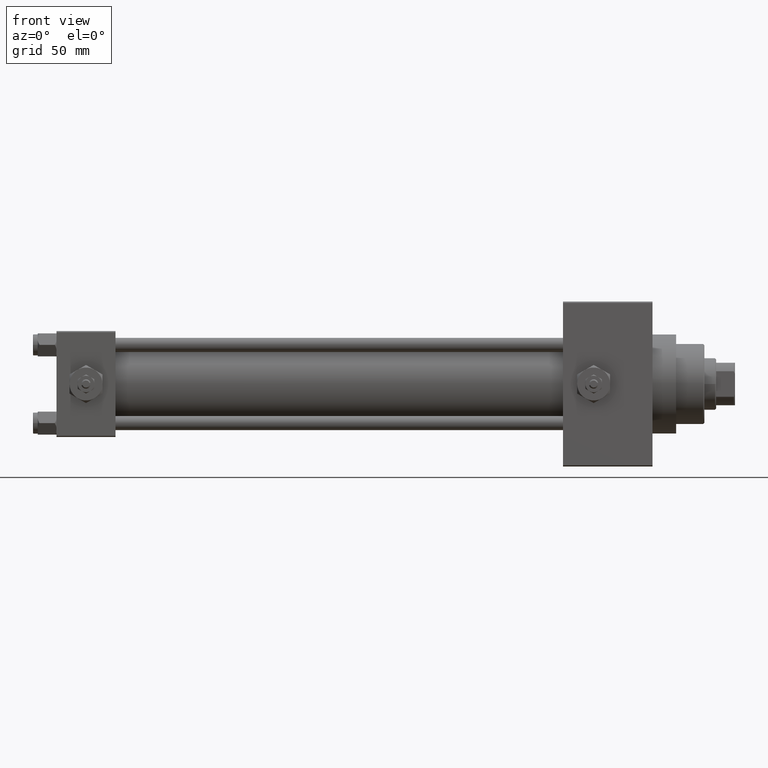
[diagram: clean part render]
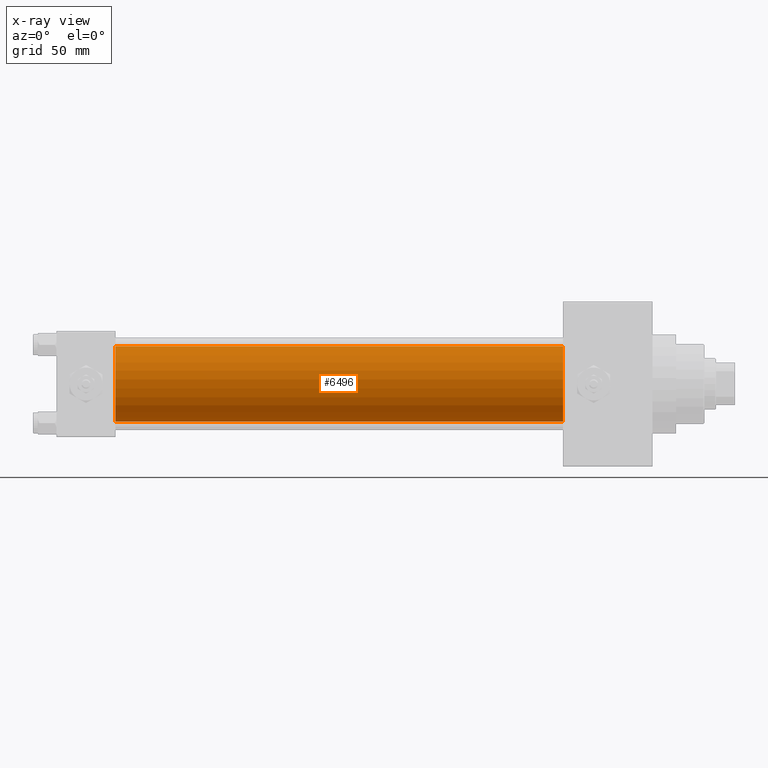
[diagram: x-ray — body ghosted, one internal face saturated and labeled with its STEP entity id]
A machine part, front view, then the same camera in x-ray: the body is ghosted and one INTERNAL B-rep face — a face not visible from any outside direction — is saturated and labeled: STEP entity #6496.
In plain terms, the highlighted cylindrical surface (partial cylindrical patch) has radius 16 mm, axis along (-1, -0, -0).
Its self-contained STEP definition (entity closure, byte-faithful):
#178 = EDGE_LOOP ( 'NONE', ( #43800, #44054, #41141, #34186 ) ) ;
#2397 = DIRECTION ( 'NONE',  ( 1.000000000000000000, 0.000000000000000000, 0.000000000000000000 ) ) ;
#3934 = LINE ( 'NONE', #4172, #26584 ) ;
#4172 = CARTESIAN_POINT ( 'NONE',  ( 215.0000000000000000, -6.426503353294456087E-16, -16.00000000000000000 ) ) ;
#4202 = EDGE_CURVE ( 'NONE', #28916, #14957, #10211, .T. ) ;
#4858 = DIRECTION ( 'NONE',  ( 0.000000000000000000, 0.000000000000000000, -1.000000000000000000 ) ) ;
#5864 = DIRECTION ( 'NONE',  ( 0.000000000000000000, 0.000000000000000000, -1.000000000000000000 ) ) ;
#5874 = EDGE_CURVE ( 'NONE', #14957, #8872, #6577, .T. ) ;
#6068 = CARTESIAN_POINT ( 'NONE',  ( 215.0000000000000000, -6.426503353294456087E-16, -16.00000000000000000 ) ) ;
#6496 = ADVANCED_FACE ( 'NONE', ( #36933 ), #29239, .F. ) ;
#6577 = CIRCLE ( 'NONE', #28773, 16.00000000000000000 ) ;
#8872 = VERTEX_POINT ( 'NONE', #35790 ) ;
#10211 = LINE ( 'NONE', #44227, #48512 ) ;
#11204 = EDGE_CURVE ( 'NONE', #31957, #8872, #3934, .T. ) ;
#11304 = CIRCLE ( 'NONE', #26375, 16.00000000000000000 ) ;
#12060 = CARTESIAN_POINT ( 'NONE',  ( 25.00000000000000000, -2.602085213965210642E-15, 0.000000000000000000 ) ) ;
#14957 = VERTEX_POINT ( 'NONE', #43234 ) ;
#15340 = DIRECTION ( 'NONE',  ( -1.000000000000000000, -0.000000000000000000, -0.000000000000000000 ) ) ;
#16748 = DIRECTION ( 'NONE',  ( 1.000000000000000000, 0.000000000000000000, 0.000000000000000000 ) ) ;
#18451 = AXIS2_PLACEMENT_3D ( 'NONE', #25995, #21015, #40409 ) ;
#21015 = DIRECTION ( 'NONE',  ( -1.000000000000000000, -0.000000000000000000, -0.000000000000000000 ) ) ;
#21124 = DIRECTION ( 'NONE',  ( -1.000000000000000000, -0.000000000000000000, -0.000000000000000000 ) ) ;
#25995 = CARTESIAN_POINT ( 'NONE',  ( 215.0000000000000000, -2.602085213965210642E-15, 0.000000000000000000 ) ) ;
#26375 = AXIS2_PLACEMENT_3D ( 'NONE', #43134, #2397, #5864 ) ;
#26584 = VECTOR ( 'NONE', #15340, 1000.000000000000000 ) ;
#28773 = AXIS2_PLACEMENT_3D ( 'NONE', #12060, #16748, #4858 ) ;
#28916 = VERTEX_POINT ( 'NONE', #34818 ) ;
#29239 = CYLINDRICAL_SURFACE ( 'NONE', #18451, 16.00000000000000000 ) ;
#30674 = EDGE_CURVE ( 'NONE', #28916, #31957, #11304, .T. ) ;
#31957 = VERTEX_POINT ( 'NONE', #6068 ) ;
#34186 = ORIENTED_EDGE ( 'NONE', *, *, #4202, .F. ) ;
#34818 = CARTESIAN_POINT ( 'NONE',  ( 215.0000000000000000, -2.602085213965210642E-15, 16.00000000000000000 ) ) ;
#35790 = CARTESIAN_POINT ( 'NONE',  ( 25.00000000000000000, -6.426503353294456087E-16, -16.00000000000000000 ) ) ;
#36933 = FACE_OUTER_BOUND ( 'NONE', #178, .T. ) ;
#40409 = DIRECTION ( 'NONE',  ( 0.000000000000000000, 0.000000000000000000, 1.000000000000000000 ) ) ;
#41141 = ORIENTED_EDGE ( 'NONE', *, *, #5874, .F. ) ;
#43134 = CARTESIAN_POINT ( 'NONE',  ( 215.0000000000000000, -2.602085213965210642E-15, 0.000000000000000000 ) ) ;
#43234 = CARTESIAN_POINT ( 'NONE',  ( 25.00000000000000000, -2.602085213965210642E-15, 16.00000000000000000 ) ) ;
#43800 = ORIENTED_EDGE ( 'NONE', *, *, #30674, .T. ) ;
#44054 = ORIENTED_EDGE ( 'NONE', *, *, #11204, .T. ) ;
#44227 = CARTESIAN_POINT ( 'NONE',  ( 215.0000000000000000, -2.602085213965210642E-15, 16.00000000000000000 ) ) ;
#48512 = VECTOR ( 'NONE', #21124, 1000.000000000000000 ) ;